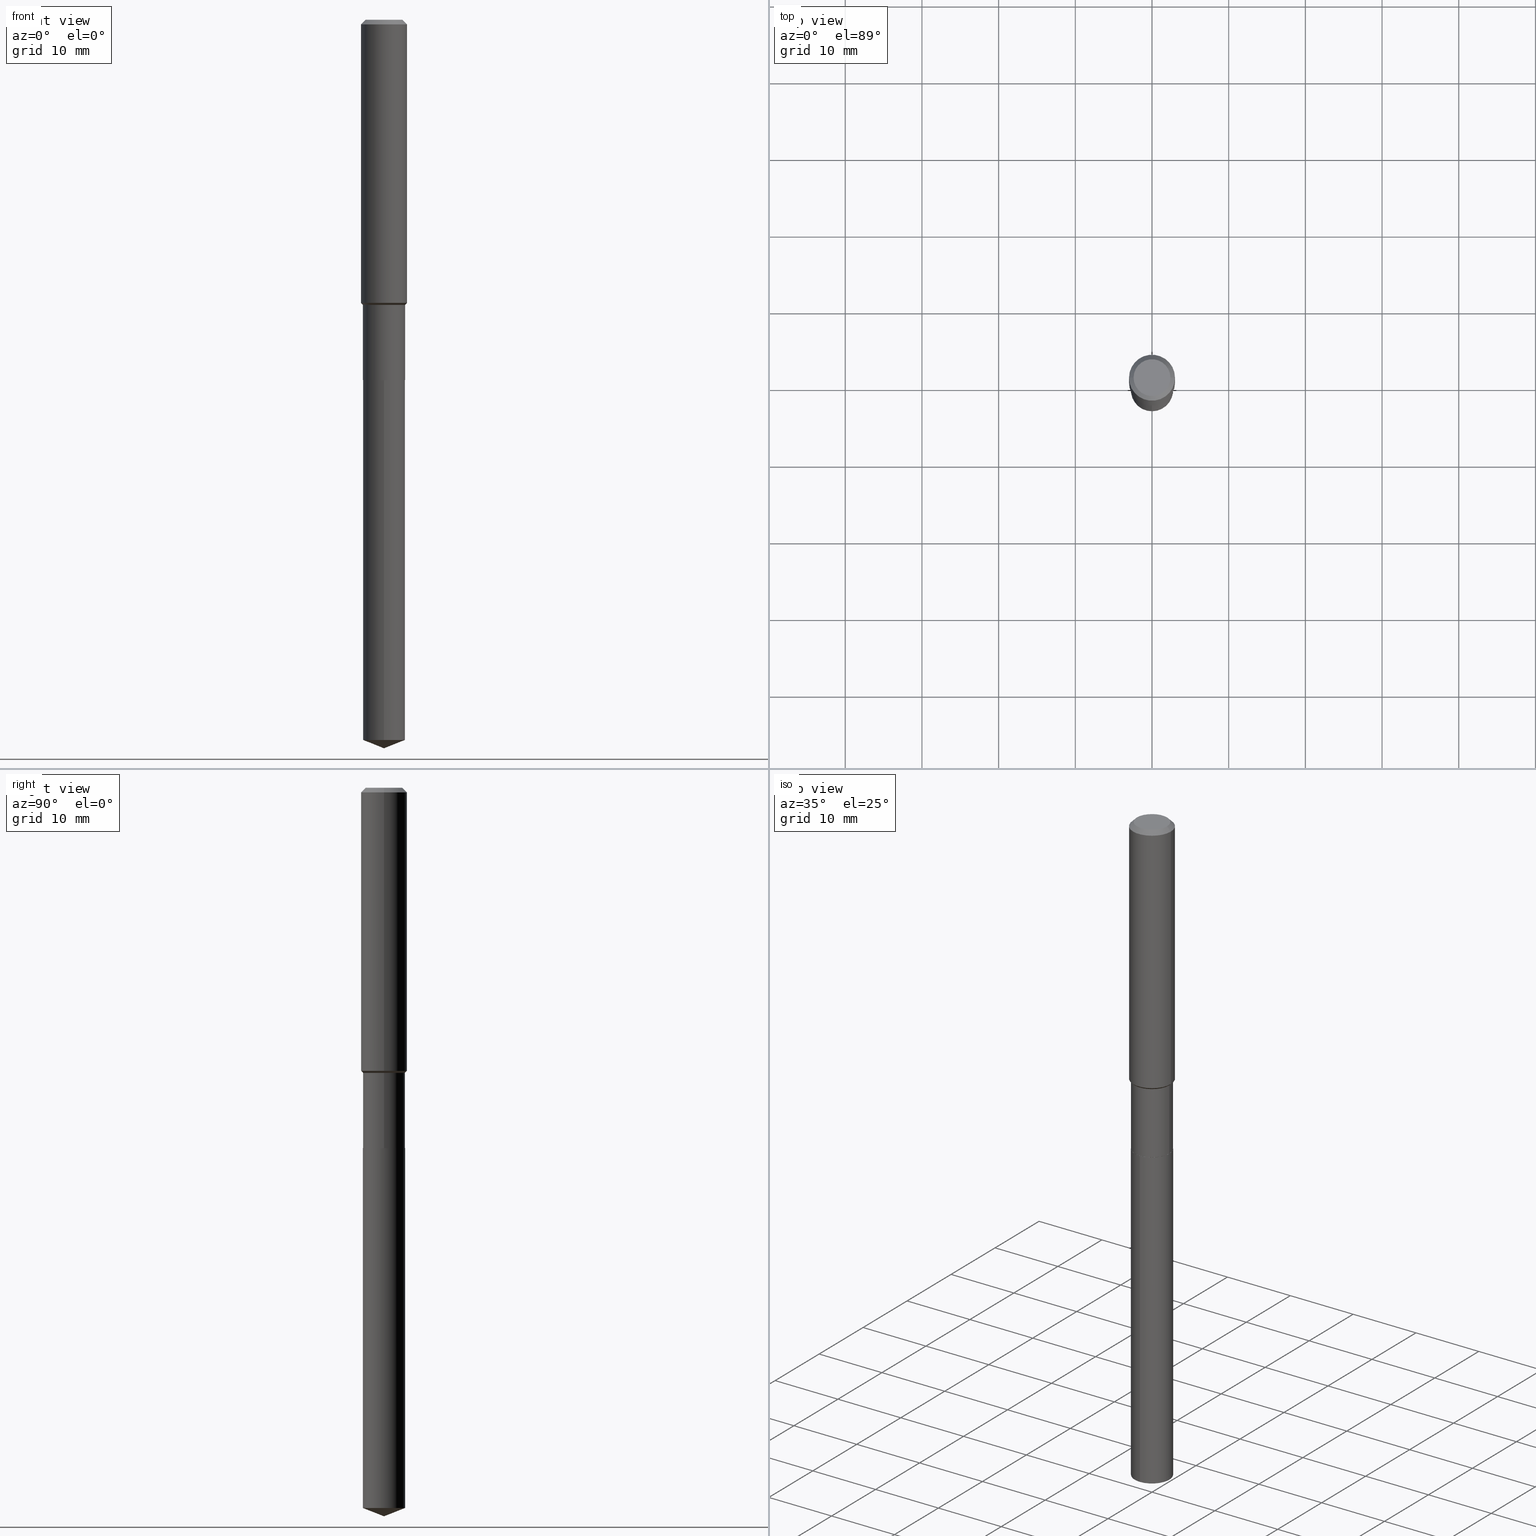
[diagram: canonical four-view strip — front | top / right | iso, engineering-drawing reading convention]
A machine part, canonical four-view strip (front | top / right | iso — engineering-drawing reading convention). The complete STEP part file that produces these views, byte-faithful:
ISO-10303-21;
HEADER;
FILE_DESCRIPTION (( 'STEP AP203' ),
    '1' );
FILE_NAME ('66631.STEP',
    '2024-04-25T02:26:37',
    ( '' ),
    ( '' ),
    'SwSTEP 2.0',
    'SolidWorks 2023',
    '' );
FILE_SCHEMA (( 'CONFIG_CONTROL_DESIGN' ));
ENDSEC;

DATA;
#1 = DATE_TIME_ROLE ( 'classification_date' ) ;
#2 = CARTESIAN_POINT ( 'NONE',  ( 4.525095478964977954E-29, -6.460637069395358365E-15, -1.850400000000000489 ) ) ;
#3 = COORDINATED_UNIVERSAL_TIME_OFFSET ( 5, 0, .BEHIND. ) ;
#4 = FACE_OUTER_BOUND ( 'NONE', #106, .T. ) ;
#5 = LOCAL_TIME ( 22, 26, 37.00000000000000000, #73 ) ;
#6 = CC_DESIGN_APPROVAL ( #266, ( #68 ) ) ;
#7 = DIRECTION ( 'NONE',  ( 2.438088387897960049E-29, -3.491481338843145188E-15, -1.000000000000000000 ) ) ;
#8 = FACE_OUTER_BOUND ( 'NONE', #432, .T. ) ;
#9 = CYLINDRICAL_SURFACE ( 'NONE', #197, 0.1181000000000000799 ) ;
#10 = VECTOR ( 'NONE', #423, 39.37007874015748143 ) ;
#11 = CARTESIAN_POINT ( 'NONE',  ( -0.1180999999999999966, 7.422191030112725094E-16, -0.02362000000000014088 ) ) ;
#12 = EDGE_LOOP ( 'NONE', ( #387, #277, #349, #93 ) ) ;
#13 = EDGE_CURVE ( 'NONE', #336, #287, #255, .T. ) ;
#14 = CARTESIAN_POINT ( 'NONE',  ( 0.09447999999999998066, -7.704367267948738690E-16, -1.928573779296752193E-17 ) ) ;
#15 = EDGE_LOOP ( 'NONE', ( #243, #354, #430 ) ) ;
#16 = CARTESIAN_POINT ( 'NONE',  ( -0.1181000000000000799, 8.391509709326788873E-16, -5.809262341591047988E-30 ) ) ;
#17 = EDGE_CURVE ( 'NONE', #478, #401, #474, .T. ) ;
#18 = VERTEX_POINT ( 'NONE', #178 ) ;
#19 = CARTESIAN_POINT ( 'NONE',  ( 9.042287333339702825E-29, -1.290992787816990651E-14, -3.697559191014683666 ) ) ;
#20 = ADVANCED_BREP_SHAPE_REPRESENTATION ( '66631', ( #282, #447, #475 ), #137 ) ;
#21 = VECTOR ( 'NONE', #225, 39.37007874015748143 ) ;
#22 = AXIS2_PLACEMENT_3D ( 'NONE', #468, #50, #195 ) ;
#23 = CARTESIAN_POINT ( 'NONE',  ( 9.146542891173238393E-29, -1.305883784153045268E-14, -3.740200000000000191 ) ) ;
#24 = CARTESIAN_POINT ( 'NONE',  ( 0.000000000000000000, 0.000000000000000000, 0.000000000000000000 ) ) ;
#25 = VERTEX_POINT ( 'NONE', #252 ) ;
#26 = ADVANCED_FACE ( 'NONE', ( #32 ), #333, .T. ) ;
#27 = LENGTH_MEASURE_WITH_UNIT ( LENGTH_MEASURE( 0.02539999999999999897 ), #212 );
#28 = EDGE_LOOP ( 'NONE', ( #328, #467, #109, #143 ) ) ;
#29 = AXIS2_PLACEMENT_3D ( 'NONE', #462, #118, #313 ) ;
#30 = APPROVAL_PERSON_ORGANIZATION ( #42, #117, #231 ) ;
#31 = DIRECTION ( 'NONE',  ( -2.445480539169630025E-29, 3.491464536541551464E-15, 1.000000000000000000 ) ) ;
#32 = FACE_OUTER_BOUND ( 'NONE', #247, .T. ) ;
#33 = DIRECTION ( 'NONE',  ( 1.000000000000000000, -6.982962677686267499E-15, 4.875432709231658792E-29 ) ) ;
#34 = EDGE_CURVE ( 'NONE', #478, #66, #64, .T. ) ;
#35 = CARTESIAN_POINT ( 'NONE',  ( 9.146586312602250272E-29, -1.305877565957271148E-14, -3.740200000000000191 ) ) ;
#36 = DIRECTION ( 'NONE',  ( -2.445480539169629745E-29, 3.491464536541551464E-15, 1.000000000000000000 ) ) ;
#37 = ORIENTED_EDGE ( 'NONE', *, *, #285, .F. ) ;
#38 = AXIS2_PLACEMENT_3D ( 'NONE', #386, #353, #426 ) ;
#39 = PERSON_AND_ORGANIZATION_ROLE ( 'classification_officer' ) ;
#40 = CARTESIAN_POINT ( 'NONE',  ( 1.249090204566720734E-29, -1.115206308097434208E-14, -1.850400000000000489 ) ) ;
#41 = EDGE_CURVE ( 'NONE', #336, #401, #107, .T. ) ;
#42 = PERSON_AND_ORGANIZATION ( #156, #429 ) ;
#43 = DIRECTION ( 'NONE',  ( 2.445480539169629464E-29, -3.491464536541551464E-15, -1.000000000000000000 ) ) ;
#44 = PERSON_AND_ORGANIZATION ( #156, #429 ) ;
#45 = DIRECTION ( 'NONE',  ( -2.445468806185136597E-29, 3.491481338843145583E-15, 1.000000000000000000 ) ) ;
#46 = VECTOR ( 'NONE', #268, 39.37007874015748143 ) ;
#47 = VECTOR ( 'NONE', #273, 39.37007874015748854 ) ;
#48 = CARTESIAN_POINT ( 'NONE',  ( 4.525095478964977394E-29, -6.460637069395357576E-15, -1.850400000000000267 ) ) ;
#49 = CARTESIAN_POINT ( 'NONE',  ( 4.716267017698007905E-46, -6.733579360998555036E-32, -1.928573779297252010E-17 ) ) ;
#50 = DIRECTION ( 'NONE',  ( 2.445468806185136597E-29, -3.491481338843145583E-15, -1.000000000000000000 ) ) ;
#51 = VERTEX_POINT ( 'NONE', #35 ) ;
#52 = EDGE_CURVE ( 'NONE', #287, #478, #219, .T. ) ;
#53 = CYLINDRICAL_SURFACE ( 'NONE', #38, 0.1082499999999999712 ) ;
#54 = ORIENTED_EDGE ( 'NONE', *, *, #185, .T. ) ;
#55 = DIRECTION ( 'NONE',  ( -2.445480539169629745E-29, 3.491464536541551464E-15, 1.000000000000000000 ) ) ;
#56 = ORIENTED_EDGE ( 'NONE', *, *, #81, .T. ) ;
#57 = CARTESIAN_POINT ( 'NONE',  ( 3.555100276991642059E-29, -5.075740996343221602E-15, -1.453749999999999654 ) ) ;
#58 = LINE ( 'NONE', #425, #303 ) ;
#59 = AXIS2_PLACEMENT_3D ( 'NONE', #441, #402, #174 ) ;
#60 = EDGE_LOOP ( 'NONE', ( #141, #275 ) ) ;
#61 = ORIENTED_EDGE ( 'NONE', *, *, #412, .F. ) ;
#62 = EDGE_CURVE ( 'NONE', #66, #176, #421, .T. ) ;
#63 = CARTESIAN_POINT ( 'NONE',  ( 4.716267017698007905E-46, -6.733579360998555036E-32, -1.928573779297252010E-17 ) ) ;
#64 = LINE ( 'NONE', #213, #67 ) ;
#65 = EDGE_CURVE ( 'NONE', #427, #442, #144, .T. ) ;
#66 = VERTEX_POINT ( 'NONE', #236 ) ;
#67 = VECTOR ( 'NONE', #364, 39.37007874015748143 ) ;
#68 = SECURITY_CLASSIFICATION ( '', '', #375 ) ;
#69 = APPLICATION_PROTOCOL_DEFINITION ( 'international standard', 'config_control_design', 1994, #443 ) ;
#70 = EDGE_LOOP ( 'NONE', ( #260, #452, #61, #130 ) ) ;
#71 =( NAMED_UNIT ( * ) PLANE_ANGLE_UNIT ( ) SI_UNIT ( $, .RADIAN. ) );
#72 = ORIENTED_EDGE ( 'NONE', *, *, #218, .F. ) ;
#73 = COORDINATED_UNIVERSAL_TIME_OFFSET ( 5, 0, .BEHIND. ) ;
#74 = CARTESIAN_POINT ( 'NONE',  ( 3.579188144732565988E-29, -5.110132087530827984E-15, -1.463600000000000012 ) ) ;
#75 = EDGE_CURVE ( 'NONE', #287, #336, #398, .T. ) ;
#76 = AXIS2_PLACEMENT_3D ( 'NONE', #404, #294, #108 ) ;
#77 = PERSON_AND_ORGANIZATION ( #156, #429 ) ;
#78 = DIRECTION ( 'NONE',  ( -6.982962677686265922E-15, -1.000000000000000000, 5.047294214622195629E-15 ) ) ;
#79 = DATE_AND_TIME ( #418, #235 ) ;
#80 = FACE_OUTER_BOUND ( 'NONE', #330, .T. ) ;
#81 = EDGE_CURVE ( 'NONE', #284, #201, #419, .T. ) ;
#82 = CARTESIAN_POINT ( 'NONE',  ( 4.523872744561885153E-29, -6.458891328725936072E-15, -1.849900000000000322 ) ) ;
#83 = AXIS2_PLACEMENT_3D ( 'NONE', #342, #7, #416 ) ;
#84 = CIRCLE ( 'NONE', #199, 0.09447999999999998066 ) ;
#85 = EDGE_CURVE ( 'NONE', #312, #254, #135, .T. ) ;
#86 = DIRECTION ( 'NONE',  ( -2.445480539169629745E-29, 3.491464536541551464E-15, 1.000000000000000000 ) ) ;
#87 = CARTESIAN_POINT ( 'NONE',  ( 7.691625114603990645E-16, 0.1082499999999935458, -1.850400000000000489 ) ) ;
#88 = DIRECTION ( 'NONE',  ( -2.445468806185136597E-29, 3.491481338843145583E-15, 1.000000000000000000 ) ) ;
#89 = ADVANCED_FACE ( 'NONE', ( #80 ), #376, .F. ) ;
#90 = AXIS2_PLACEMENT_3D ( 'NONE', #405, #147, #222 ) ;
#91 = LOCAL_TIME ( 22, 26, 37.00000000000000000, #301 ) ;
#92 = DIRECTION ( 'NONE',  ( -2.445468806185136597E-29, 3.491481338843145583E-15, 1.000000000000000000 ) ) ;
#93 = ORIENTED_EDGE ( 'NONE', *, *, #185, .F. ) ;
#94 = DIRECTION ( 'NONE',  ( -2.445468806185136877E-29, 3.491481338843145188E-15, 1.000000000000000000 ) ) ;
#95 = ORIENTED_EDGE ( 'NONE', *, *, #477, .T. ) ;
#96 = DIRECTION ( 'NONE',  ( -6.982962677686265922E-15, -1.000000000000000000, 5.047294214622195629E-15 ) ) ;
#97 = ORIENTED_EDGE ( 'NONE', *, *, #62, .T. ) ;
#98 = AXIS2_PLACEMENT_3D ( 'NONE', #48, #43, #149 ) ;
#99 = DIRECTION ( 'NONE',  ( -6.982962677686265922E-15, -1.000000000000000000, 2.523647107311097814E-15 ) ) ;
#100 = CIRCLE ( 'NONE', #456, 0.1082499999999999435 ) ;
#101 = EDGE_LOOP ( 'NONE', ( #210, #245, #324, #316 ) ) ;
#102 = LINE ( 'NONE', #331, #216 ) ;
#103 = ORIENTED_EDGE ( 'NONE', *, *, #433, .F. ) ;
#104 = ADVANCED_FACE ( 'NONE', ( #381 ), #340, .F. ) ;
#105 =( NAMED_UNIT ( * ) SI_UNIT ( $, .STERADIAN. ) SOLID_ANGLE_UNIT ( ) );
#106 = EDGE_LOOP ( 'NONE', ( #397, #332, #489, #134 ) ) ;
#107 = LINE ( 'NONE', #258, #348 ) ;
#108 = DIRECTION ( 'NONE',  ( 1.000000000000000000, -6.982962677686263555E-15, 0.000000000000000000 ) ) ;
#109 = ORIENTED_EDGE ( 'NONE', *, *, #17, .F. ) ;
#110 = CALENDAR_DATE ( 2024, 24, 4 ) ;
#111 = DIRECTION ( 'NONE',  ( 1.000000000000000000, -6.982962677686267499E-15, 0.000000000000000000 ) ) ;
#112 = PERSON_AND_ORGANIZATION_ROLE ( 'design_owner' ) ;
#113 = CARTESIAN_POINT ( 'NONE',  ( 3.579188144732565988E-29, -5.110132087530827984E-15, -1.463600000000000012 ) ) ;
#114 = APPROVAL_DATE_TIME ( #261, #117 ) ;
#115 = CARTESIAN_POINT ( 'NONE',  ( 4.525095478964977394E-29, -6.460637069395357576E-15, -1.850400000000000267 ) ) ;
#116 = CARTESIAN_POINT ( 'NONE',  ( 0.1180999999999999966, -9.071566814582237199E-16, -0.02362000000000014088 ) ) ;
#117 = APPROVAL ( #186, 'UNSPECIFIED' ) ;
#118 = DIRECTION ( 'NONE',  ( -2.445468806185136597E-29, 3.491481338843145583E-15, 1.000000000000000000 ) ) ;
#119 = AXIS2_PLACEMENT_3D ( 'NONE', #115, #86, #383 ) ;
#120 = CONICAL_SURFACE ( 'NONE', #257, 99.94676754584159539, 1.195550537616125064 ) ;
#121 = CARTESIAN_POINT ( 'NONE',  ( -8.713219678274335127E-28, 1.244004269715567405E-13, 35.62987874015747991 ) ) ;
#122 = FACE_OUTER_BOUND ( 'NONE', #70, .T. ) ;
#123 = ORIENTED_EDGE ( 'NONE', *, *, #152, .T. ) ;
#124 = CARTESIAN_POINT ( 'NONE',  ( 7.691625114603988673E-16, 0.1082499999999870927, -3.697559191014684554 ) ) ;
#125 = CC_DESIGN_PERSON_AND_ORGANIZATION_ASSIGNMENT ( #411, #263, ( #457 ) ) ;
#126 = EDGE_LOOP ( 'NONE', ( #132, #291, #362, #209 ) ) ;
#127 = AXIS2_PLACEMENT_3D ( 'NONE', #234, #413, #78 ) ;
#128 = AXIS2_PLACEMENT_3D ( 'NONE', #476, #36, #286 ) ;
#129 = DIRECTION ( 'NONE',  ( 6.611014441532080788E-15, 0.9304175679820292366, 0.3665012267242853672 ) ) ;
#130 = ORIENTED_EDGE ( 'NONE', *, *, #34, .F. ) ;
#131 = DIRECTION ( 'NONE',  ( -2.445480539169629745E-29, 3.491464536541551464E-15, 1.000000000000000000 ) ) ;
#132 = ORIENTED_EDGE ( 'NONE', *, *, #85, .T. ) ;
#133 = FACE_OUTER_BOUND ( 'NONE', #298, .T. ) ;
#134 = ORIENTED_EDGE ( 'NONE', *, *, #327, .F. ) ;
#135 = CIRCLE ( 'NONE', #127, 0.1082499999999999990 ) ;
#136 = ADVANCED_FACE ( 'NONE', ( #230 ), #406, .T. ) ;
#137 =( GEOMETRIC_REPRESENTATION_CONTEXT ( 3 ) GLOBAL_UNCERTAINTY_ASSIGNED_CONTEXT ( ( #233 ) ) GLOBAL_UNIT_ASSIGNED_CONTEXT ( ( #409, #71, #105 ) ) REPRESENTATION_CONTEXT ( 'NONE', 'WORKASPACE' ) );
#138 = DIRECTION ( 'NONE',  ( 1.000000000000000000, -6.982962677686267499E-15, 0.000000000000000000 ) ) ;
#139 = EDGE_LOOP ( 'NONE', ( #465, #172, #357, #160 ) ) ;
#140 = CARTESIAN_POINT ( 'NONE',  ( 0.000000000000000000, 0.000000000000000000, 0.000000000000000000 ) ) ;
#141 = ORIENTED_EDGE ( 'NONE', *, *, #75, .F. ) ;
#142 = DIRECTION ( 'NONE',  ( -2.445480539169629745E-29, 3.491464536541551464E-15, 1.000000000000000000 ) ) ;
#143 = ORIENTED_EDGE ( 'NONE', *, *, #52, .F. ) ;
#144 = CIRCLE ( 'NONE', #119, 0.1082499999999999990 ) ;
#145 = AXIS2_PLACEMENT_3D ( 'NONE', #463, #88, #315 ) ;
#146 = CALENDAR_DATE ( 2024, 24, 4 ) ;
#147 = DIRECTION ( 'NONE',  ( -2.445468806185136597E-29, 3.491481338843145583E-15, 1.000000000000000000 ) ) ;
#148 = APPROVAL_STATUS ( 'not_yet_approved' ) ;
#149 = DIRECTION ( 'NONE',  ( 6.982962677686265922E-15, 1.000000000000000000, -3.491464536541551464E-15 ) ) ;
#150 = DATE_TIME_ROLE ( 'creation_date' ) ;
#151 = PLANE ( 'NONE',  #83 ) ;
#152 = EDGE_CURVE ( 'NONE', #250, #284, #317, .T. ) ;
#153 = CARTESIAN_POINT ( 'NONE',  ( 4.525095478964977954E-29, -6.460637069395358365E-15, -1.850400000000000489 ) ) ;
#154 = CARTESIAN_POINT ( 'NONE',  ( 5.776197320209327532E-31, -8.246878922347559293E-17, -0.02362000000000014088 ) ) ;
#155 = DIRECTION ( 'NONE',  ( 1.000000000000000000, -6.982962677686271444E-15, 0.000000000000000000 ) ) ;
#156 = PERSON ( 'UNSPECIFIED', 'UNSPECIFIED', 'UNSPECIFIED', ('UNSPECIFIED'), ('UNSPECIFIED'), ('UNSPECIFIED') ) ;
#157 = AXIS2_PLACEMENT_3D ( 'NONE', #153, #262, #302 ) ;
#158 = VECTOR ( 'NONE', #31, 39.37007874015748143 ) ;
#159 = DIRECTION ( 'NONE',  ( -6.982962677686265922E-15, -1.000000000000000000, 2.523647107311097814E-15 ) ) ;
#160 = ORIENTED_EDGE ( 'NONE', *, *, #65, .F. ) ;
#161 = EDGE_CURVE ( 'NONE', #25, #201, #486, .T. ) ;
#162 = FACE_OUTER_BOUND ( 'NONE', #101, .T. ) ;
#163 = DIRECTION ( 'NONE',  ( -2.445468806185136877E-29, 3.491481338843145188E-15, 1.000000000000000000 ) ) ;
#164 = ADVANCED_FACE ( 'NONE', ( #4 ), #9, .T. ) ;
#165 = AXIS2_PLACEMENT_3D ( 'NONE', #74, #459, #385 ) ;
#166 = LOCAL_TIME ( 22, 26, 37.00000000000000000, #183 ) ;
#167 = DIRECTION ( 'NONE',  ( -2.445480539169629745E-29, 3.491464536541551464E-15, 1.000000000000000000 ) ) ;
#168 = ORIENTED_EDGE ( 'NONE', *, *, #293, .F. ) ;
#169 = ADVANCED_FACE ( 'NONE', ( #269 ), #151, .F. ) ;
#170 = DIRECTION ( 'NONE',  ( -2.445468806185136877E-29, 3.491481338843145188E-15, 1.000000000000000000 ) ) ;
#171 = CYLINDRICAL_SURFACE ( 'NONE', #128, 0.1082499999999999990 ) ;
#172 = ORIENTED_EDGE ( 'NONE', *, *, #218, .T. ) ;
#173 = AXIS2_PLACEMENT_3D ( 'NONE', #2, #306, #300 ) ;
#174 = DIRECTION ( 'NONE',  ( 1.000000000000000000, -6.982962677686271444E-15, 0.000000000000000000 ) ) ;
#175 = ORIENTED_EDGE ( 'NONE', *, *, #460, .F. ) ;
#176 = VERTEX_POINT ( 'NONE', #344 ) ;
#177 = FACE_OUTER_BOUND ( 'NONE', #139, .T. ) ;
#178 = CARTESIAN_POINT ( 'NONE',  ( -0.1181000000000001632, -4.236590025410543405E-15, -1.453749999999999654 ) ) ;
#179 = COORDINATED_UNIVERSAL_TIME_OFFSET ( 5, 0, .BEHIND. ) ;
#180 = EDGE_LOOP ( 'NONE', ( #352, #449, #97, #196 ) ) ;
#181 = AXIS2_PLACEMENT_3D ( 'NONE', #244, #92, #360 ) ;
#182 = CC_DESIGN_PERSON_AND_ORGANIZATION_ASSIGNMENT ( #488, #39, ( #68 ) ) ;
#183 = COORDINATED_UNIVERSAL_TIME_OFFSET ( 5, 0, .BEHIND. ) ;
#184 = FACE_OUTER_BOUND ( 'NONE', #28, .T. ) ;
#185 = EDGE_CURVE ( 'NONE', #401, #478, #358, .T. ) ;
#186 = APPROVAL_STATUS ( 'not_yet_approved' ) ;
#187 = CARTESIAN_POINT ( 'NONE',  ( 0.1180999999999999966, -8.926936027602933910E-16, -0.02362000000000014088 ) ) ;
#188 = PRODUCT_DEFINITION_SHAPE ( 'NONE', 'NONE',  #205 ) ;
#189 = SHAPE_DEFINITION_REPRESENTATION ( #188, #20 ) ;
#190 = DIRECTION ( 'NONE',  ( -2.445468806185136597E-29, 3.491481338843145583E-15, 1.000000000000000000 ) ) ;
#191 = VECTOR ( 'NONE', #129, 39.37007874015748143 ) ;
#192 = CARTESIAN_POINT ( 'NONE',  ( 0.000000000000000000, 0.000000000000000000, 0.000000000000000000 ) ) ;
#193 = DIRECTION ( 'NONE',  ( 1.000000000000000000, -6.982962677686266711E-15, 0.000000000000000000 ) ) ;
#194 = EDGE_CURVE ( 'NONE', #469, #66, #100, .T. ) ;
#195 = DIRECTION ( 'NONE',  ( -1.000000000000000000, 6.982962677686266711E-15, 0.000000000000000000 ) ) ;
#196 = ORIENTED_EDGE ( 'NONE', *, *, #394, .F. ) ;
#197 = AXIS2_PLACEMENT_3D ( 'NONE', #192, #190, #304 ) ;
#198 = CC_DESIGN_PERSON_AND_ORGANIZATION_ASSIGNMENT ( #44, #297, ( #457 ) ) ;
#199 = AXIS2_PLACEMENT_3D ( 'NONE', #63, #326, #33 ) ;
#200 = DIRECTION ( 'NONE',  ( 1.000000000000000000, -6.982962677686271444E-15, 0.000000000000000000 ) ) ;
#201 = VERTEX_POINT ( 'NONE', #116 ) ;
#202 = ADVANCED_FACE ( 'NONE', ( #184 ), #307, .T. ) ;
#203 = CARTESIAN_POINT ( 'NONE',  ( -0.1077499999999999986, -5.692378044439739125E-15, -1.850400000000000489 ) ) ;
#204 = DIRECTION ( 'NONE',  ( 1.000000000000000000, -6.982962677686270655E-15, 0.000000000000000000 ) ) ;
#205 = PRODUCT_DEFINITION ( 'UNKNOWN', '', #457, #228 ) ;
#206 = AXIS2_PLACEMENT_3D ( 'NONE', #369, #292, #444 ) ;
#207 = CIRCLE ( 'NONE', #335, 0.1082499999999999990 ) ;
#208 = LINE ( 'NONE', #16, #226 ) ;
#209 = ORIENTED_EDGE ( 'NONE', *, *, #481, .F. ) ;
#210 = ORIENTED_EDGE ( 'NONE', *, *, #81, .F. ) ;
#211 = ADVANCED_FACE ( 'NONE', ( #8 ), #305, .T. ) ;
#212 =( LENGTH_UNIT ( ) NAMED_UNIT ( * ) SI_UNIT ( $, .METRE. ) );
#213 = CARTESIAN_POINT ( 'NONE',  ( 0.1082499999999999712, -7.559057098595381624E-16, 5.278461359799098590E-30 ) ) ;
#214 = CIRCLE ( 'NONE', #308, 0.1082499999999999990 ) ;
#215 = FACE_OUTER_BOUND ( 'NONE', #403, .T. ) ;
#216 = VECTOR ( 'NONE', #363, 39.37007874015748143 ) ;
#217 = DIRECTION ( 'NONE',  ( -2.445468806185136597E-29, 3.491481338843145583E-15, 1.000000000000000000 ) ) ;
#218 = EDGE_CURVE ( 'NONE', #254, #312, #214, .T. ) ;
#219 = LINE ( 'NONE', #461, #21 ) ;
#220 = MECHANICAL_CONTEXT ( 'NONE', #443, 'mechanical' ) ;
#221 = APPROVAL ( #148, 'UNSPECIFIED' ) ;
#222 = DIRECTION ( 'NONE',  ( 1.000000000000000000, -6.982962677686263555E-15, 0.000000000000000000 ) ) ;
#223 = APPROVAL_DATE_TIME ( #453, #221 ) ;
#224 = CLOSED_SHELL ( 'NONE', ( #202, #26, #164, #439, #345, #450, #136, #211, #379, #169, #104, #490 ) ) ;
#225 = DIRECTION ( 'NONE',  ( 0.7071067811864267805, -2.468850131080992517E-15, 0.7071067811866682540 ) ) ;
#226 = VECTOR ( 'NONE', #163, 39.37007874015748143 ) ;
#227 = EDGE_CURVE ( 'NONE', #176, #18, #295, .T. ) ;
#228 = DESIGN_CONTEXT ( 'detailed design', #350, 'design' ) ;
#229 = APPROVAL_STATUS ( 'not_yet_approved' ) ;
#230 = FACE_OUTER_BOUND ( 'NONE', #180, .T. ) ;
#231 = APPROVAL_ROLE ( '' ) ;
#232 = DIRECTION ( 'NONE',  ( -2.438088387897960049E-29, 3.491481338843145188E-15, 1.000000000000000000 ) ) ;
#233 = UNCERTAINTY_MEASURE_WITH_UNIT (LENGTH_MEASURE( 1.000000000000000082E-05 ), #409, 'distance_accuracy_value', 'NONE');
#234 = CARTESIAN_POINT ( 'NONE',  ( 9.042287333339702825E-29, -1.290992787816990651E-14, -3.697559191014683666 ) ) ;
#235 = LOCAL_TIME ( 22, 26, 37.00000000000000000, #3 ) ;
#236 = CARTESIAN_POINT ( 'NONE',  ( 0.1082499999999999435, -5.866037797390366639E-15, -1.463600000000000012 ) ) ;
#237 = LINE ( 'NONE', #11, #271 ) ;
#238 = DIRECTION ( 'NONE',  ( -2.445468806185136597E-29, 3.491481338843145583E-15, 1.000000000000000000 ) ) ;
#239 = ORIENTED_EDGE ( 'NONE', *, *, #240, .T. ) ;
#240 = EDGE_CURVE ( 'NONE', #442, #427, #207, .T. ) ;
#241 = CIRCLE ( 'NONE', #414, 0.1181000000000001632 ) ;
#242 = CARTESIAN_POINT ( 'NONE',  ( 0.1077499999999999986, -7.213051297916053224E-15, -1.850400000000000489 ) ) ;
#243 = ORIENTED_EDGE ( 'NONE', *, *, #420, .F. ) ;
#244 = CARTESIAN_POINT ( 'NONE',  ( 3.555100276991642059E-29, -5.075740996343221602E-15, -1.453749999999999654 ) ) ;
#245 = ORIENTED_EDGE ( 'NONE', *, *, #152, .F. ) ;
#246 = LINE ( 'NONE', #395, #343 ) ;
#247 = EDGE_LOOP ( 'NONE', ( #175, #56, #290, #103 ) ) ;
#248 = AXIS2_PLACEMENT_3D ( 'NONE', #40, #232, #264 ) ;
#249 = CYLINDRICAL_SURFACE ( 'NONE', #318, 0.1082499999999999712 ) ;
#250 = VERTEX_POINT ( 'NONE', #274 ) ;
#251 = DIRECTION ( 'NONE',  ( -2.445468806185136597E-29, 3.491481338843145583E-15, 1.000000000000000000 ) ) ;
#252 = CARTESIAN_POINT ( 'NONE',  ( -0.1180999999999999966, -1.739953921850669150E-15, -0.02362000000000014088 ) ) ;
#253 = CARTESIAN_POINT ( 'NONE',  ( 0.1082499999999999990, -7.214797038585475517E-15, -1.849900000000000322 ) ) ;
#254 = VERTEX_POINT ( 'NONE', #124 ) ;
#255 = CIRCLE ( 'NONE', #90, 0.1077499999999999986 ) ;
#256 = FACE_OUTER_BOUND ( 'NONE', #126, .T. ) ;
#257 = AXIS2_PLACEMENT_3D ( 'NONE', #121, #55, #311 ) ;
#258 = CARTESIAN_POINT ( 'NONE',  ( -0.1077499999999999986, -5.695027271613851115E-15, -1.850400000000000489 ) ) ;
#259 = EDGE_CURVE ( 'NONE', #254, #427, #246, .T. ) ;
#260 = ORIENTED_EDGE ( 'NONE', *, *, #17, .T. ) ;
#261 = DATE_AND_TIME ( #341, #91 ) ;
#262 = DIRECTION ( 'NONE',  ( -2.445468806185136597E-29, 3.491481338843145583E-15, 1.000000000000000000 ) ) ;
#263 = PERSON_AND_ORGANIZATION_ROLE ( 'design_supplier' ) ;
#264 = DIRECTION ( 'NONE',  ( 1.000000000000000000, -6.982962677686265922E-15, 4.876176775795935793E-29 ) ) ;
#265 = CONICAL_SURFACE ( 'NONE', #59, 0.1082499999999999435, 0.7853981633974509435 ) ;
#266 = APPROVAL ( #229, 'UNSPECIFIED' ) ;
#267 = PERSON_AND_ORGANIZATION_ROLE ( 'creator' ) ;
#268 = DIRECTION ( 'NONE',  ( 0.7071067811865493491, -2.468850131082276388E-15, 0.7071067811865456854 ) ) ;
#269 = FACE_OUTER_BOUND ( 'NONE', #372, .T. ) ;
#270 = DIRECTION ( 'NONE',  ( -2.445468806185136597E-29, 3.491481338843145583E-15, 1.000000000000000000 ) ) ;
#271 = VECTOR ( 'NONE', #448, 39.37007874015748143 ) ;
#272 = CC_DESIGN_DATE_AND_TIME_ASSIGNMENT ( #451, #1, ( #68 ) ) ;
#273 = DIRECTION ( 'NONE',  ( -6.497071151882134036E-15, -0.9304175679820266831, 0.3665012267242919175 ) ) ;
#274 = CARTESIAN_POINT ( 'NONE',  ( -0.09447999999999998066, 7.009847083995354710E-16, -1.928573779297727792E-17 ) ) ;
#275 = ORIENTED_EDGE ( 'NONE', *, *, #13, .F. ) ;
#276 = DIRECTION ( 'NONE',  ( -2.445480539169629745E-29, 3.491464536541551464E-15, 1.000000000000000000 ) ) ;
#277 = ORIENTED_EDGE ( 'NONE', *, *, #13, .T. ) ;
#278 = CC_DESIGN_DATE_AND_TIME_ASSIGNMENT ( #337, #150, ( #205 ) ) ;
#279 = CC_DESIGN_APPROVAL ( #221, ( #205 ) ) ;
#280 = LINE ( 'NONE', #392, #359 ) ;
#281 = ORIENTED_EDGE ( 'NONE', *, *, #394, .T. ) ;
#282 = MANIFOLD_SOLID_BREP ( 'Body-Move/Copy2[1]', #365 ) ;
#283 = CARTESIAN_POINT ( 'NONE',  ( 9.146586693356927948E-29, -1.305877565957271148E-14, -3.740200000000000191 ) ) ;
#284 = VERTEX_POINT ( 'NONE', #14 ) ;
#285 = EDGE_CURVE ( 'NONE', #51, #254, #396, .T. ) ;
#286 = DIRECTION ( 'NONE',  ( -6.982962677686265922E-15, -1.000000000000000000, 2.523647107311097814E-15 ) ) ;
#287 = VERTEX_POINT ( 'NONE', #242 ) ;
#288 = CONICAL_SURFACE ( 'NONE', #76, 0.1077499999999999986, 0.7853981633972775267 ) ;
#289 = PERSON_AND_ORGANIZATION ( #156, #429 ) ;
#290 = ORIENTED_EDGE ( 'NONE', *, *, #382, .T. ) ;
#291 = ORIENTED_EDGE ( 'NONE', *, *, #259, .T. ) ;
#292 = DIRECTION ( 'NONE',  ( 2.445468806185136597E-29, -3.491481338843145583E-15, -1.000000000000000000 ) ) ;
#293 = EDGE_CURVE ( 'NONE', #401, #469, #280, .T. ) ;
#294 = DIRECTION ( 'NONE',  ( -2.445468806185136597E-29, 3.491481338843145583E-15, 1.000000000000000000 ) ) ;
#295 = CIRCLE ( 'NONE', #181, 0.1181000000000001632 ) ;
#296 = ORIENTED_EDGE ( 'NONE', *, *, #420, .T. ) ;
#297 = PERSON_AND_ORGANIZATION_ROLE ( 'creator' ) ;
#298 = EDGE_LOOP ( 'NONE', ( #483, #95, #320, #371 ) ) ;
#299 = APPROVAL_ROLE ( '' ) ;
#300 = DIRECTION ( 'NONE',  ( 1.000000000000000000, -6.982962677686263555E-15, 0.000000000000000000 ) ) ;
#301 = COORDINATED_UNIVERSAL_TIME_OFFSET ( 5, 0, .BEHIND. ) ;
#302 = DIRECTION ( 'NONE',  ( 1.000000000000000000, -6.982962677686263555E-15, 0.000000000000000000 ) ) ;
#303 = VECTOR ( 'NONE', #94, 39.37007874015748143 ) ;
#304 = DIRECTION ( 'NONE',  ( 1.000000000000000000, -6.982962677686266711E-15, 4.876176775795936353E-29 ) ) ;
#305 = CYLINDRICAL_SURFACE ( 'NONE', #29, 0.1181000000000000799 ) ;
#306 = DIRECTION ( 'NONE',  ( -2.445468806185136597E-29, 3.491481338843145583E-15, 1.000000000000000000 ) ) ;
#307 = CONICAL_SURFACE ( 'NONE', #157, 0.1077499999999999986, 0.7853981633972775267 ) ;
#308 = AXIS2_PLACEMENT_3D ( 'NONE', #19, #167, #96 ) ;
#309 = AXIS2_PLACEMENT_3D ( 'NONE', #351, #131, #466 ) ;
#310 = ADVANCED_FACE ( 'NONE', ( #431 ), #120, .T. ) ;
#311 = DIRECTION ( 'NONE',  ( -6.982962677686266711E-15, -1.000000000000000000, 3.498627837349947424E-15 ) ) ;
#312 = VERTEX_POINT ( 'NONE', #464 ) ;
#313 = DIRECTION ( 'NONE',  ( 1.000000000000000000, -6.982962677686266711E-15, 4.876176775795936353E-29 ) ) ;
#314 = ORIENTED_EDGE ( 'NONE', *, *, #34, .T. ) ;
#315 = DIRECTION ( 'NONE',  ( 1.000000000000000000, -6.982962677686266711E-15, 0.000000000000000000 ) ) ;
#316 = ORIENTED_EDGE ( 'NONE', *, *, #161, .T. ) ;
#317 = CIRCLE ( 'NONE', #445, 0.09447999999999998066 ) ;
#318 = AXIS2_PLACEMENT_3D ( 'NONE', #140, #251, #370 ) ;
#319 = CARTESIAN_POINT ( 'NONE',  ( -0.1082499999999999851, -5.015349196668073880E-15, -1.849900000000000322 ) ) ;
#320 = ORIENTED_EDGE ( 'NONE', *, *, #227, .F. ) ;
#321 = CARTESIAN_POINT ( 'NONE',  ( -0.1082499999999999435, -5.015349196668073880E-15, -1.463600000000000012 ) ) ;
#322 = EDGE_LOOP ( 'NONE', ( #37, #296, #72 ) ) ;
#323 = DIRECTION ( 'NONE',  ( 1.000000000000000000, 0.000000000000000000, 0.000000000000000000 ) ) ;
#324 = ORIENTED_EDGE ( 'NONE', *, *, #433, .T. ) ;
#325 = APPROVAL_PERSON_ORGANIZATION ( #339, #221, #299 ) ;
#326 = DIRECTION ( 'NONE',  ( -2.445468806185136597E-29, 3.491481338843145583E-15, 1.000000000000000000 ) ) ;
#327 = EDGE_CURVE ( 'NONE', #176, #201, #58, .T. ) ;
#328 = ORIENTED_EDGE ( 'NONE', *, *, #75, .T. ) ;
#329 = DIRECTION ( 'NONE',  ( 0.000000000000000000, 0.000000000000000000, 1.000000000000000000 ) ) ;
#330 = EDGE_LOOP ( 'NONE', ( #239, #391 ) ) ;
#331 = CARTESIAN_POINT ( 'NONE',  ( -0.1082499999999999435, -4.340969576070519835E-15, -1.463600000000000012 ) ) ;
#332 = ORIENTED_EDGE ( 'NONE', *, *, #356, .T. ) ;
#333 = CONICAL_SURFACE ( 'NONE', #206, 0.1180999999999999966, 0.7853981633974460586 ) ;
#334 = APPLICATION_PROTOCOL_DEFINITION ( 'international standard', 'config_control_design', 1994, #350 ) ;
#335 = AXIS2_PLACEMENT_3D ( 'NONE', #388, #276, #159 ) ;
#336 = VERTEX_POINT ( 'NONE', #203 ) ;
#337 = DATE_AND_TIME ( #110, #390 ) ;
#338 = DIRECTION ( 'NONE',  ( -2.445468806185136597E-29, 3.491481338843145583E-15, 1.000000000000000000 ) ) ;
#339 = PERSON_AND_ORGANIZATION ( #156, #429 ) ;
#340 = PLANE ( 'NONE',  #248 ) ;
#341 = CALENDAR_DATE ( 2024, 24, 4 ) ;
#342 = CARTESIAN_POINT ( 'NONE',  ( 2.358133508849003952E-46, -3.366789680499277518E-32, -9.642868896486260050E-18 ) ) ;
#343 = VECTOR ( 'NONE', #428, 39.37007874015748143 ) ;
#344 = CARTESIAN_POINT ( 'NONE',  ( 0.1181000000000001632, -5.900428888577971443E-15, -1.453749999999999654 ) ) ;
#345 = ADVANCED_FACE ( 'NONE', ( #122 ), #53, .T. ) ;
#346 = DIRECTION ( 'NONE',  ( -2.445468806185136597E-29, 3.491481338843145583E-15, 1.000000000000000000 ) ) ;
#347 = CARTESIAN_POINT ( 'NONE',  ( 3.579188144732565988E-29, -5.110132087530827984E-15, -1.463600000000000012 ) ) ;
#348 = VECTOR ( 'NONE', #408, 39.37007874015748143 ) ;
#349 = ORIENTED_EDGE ( 'NONE', *, *, #52, .T. ) ;
#350 = APPLICATION_CONTEXT ( 'configuration controlled 3d designs of mechanical parts and assemblies' ) ;
#351 = CARTESIAN_POINT ( 'NONE',  ( -8.713219678274335127E-28, 1.244004269715567405E-13, 35.62987874015747991 ) ) ;
#352 = ORIENTED_EDGE ( 'NONE', *, *, #477, .F. ) ;
#353 = DIRECTION ( 'NONE',  ( -2.445468806185136597E-29, 3.491481338843145583E-15, 1.000000000000000000 ) ) ;
#354 = ORIENTED_EDGE ( 'NONE', *, *, #285, .T. ) ;
#355 = DIRECTION ( 'NONE',  ( -2.445468806185136597E-29, 3.491481338843145583E-15, 1.000000000000000000 ) ) ;
#356 = EDGE_CURVE ( 'NONE', #18, #25, #208, .T. ) ;
#357 = ORIENTED_EDGE ( 'NONE', *, *, #481, .T. ) ;
#358 = CIRCLE ( 'NONE', #422, 0.1082499999999999990 ) ;
#359 = VECTOR ( 'NONE', #170, 39.37007874015748143 ) ;
#360 = DIRECTION ( 'NONE',  ( 1.000000000000000000, -6.982962677686270655E-15, 0.000000000000000000 ) ) ;
#361 = CC_DESIGN_PERSON_AND_ORGANIZATION_ASSIGNMENT ( #458, #267, ( #205 ) ) ;
#362 = ORIENTED_EDGE ( 'NONE', *, *, #240, .F. ) ;
#363 = DIRECTION ( 'NONE',  ( -0.7071067811865493491, 7.493145998870360471E-15, 0.7071067811865456854 ) ) ;
#364 = DIRECTION ( 'NONE',  ( -2.445468806185136877E-29, 3.491481338843145188E-15, 1.000000000000000000 ) ) ;
#365 = CLOSED_SHELL ( 'NONE', ( #455, #417, #310, #470, #89 ) ) ;
#366 = CONICAL_SURFACE ( 'NONE', #309, 99.94676754584159539, 1.195550537616125064 ) ;
#367 = CC_DESIGN_PERSON_AND_ORGANIZATION_ASSIGNMENT ( #289, #112, ( #400 ) ) ;
#368 = LINE ( 'NONE', #482, #158 ) ;
#369 = CARTESIAN_POINT ( 'NONE',  ( 5.776197320209327532E-31, -8.246878922347559293E-17, -0.02362000000000014088 ) ) ;
#370 = DIRECTION ( 'NONE',  ( 1.000000000000000000, -6.982962677686266711E-15, 4.876176775795935232E-29 ) ) ;
#371 = ORIENTED_EDGE ( 'NONE', *, *, #62, .F. ) ;
#372 = EDGE_LOOP ( 'NONE', ( #123, #440 ) ) ;
#373 = AXIS2_PLACEMENT_3D ( 'NONE', #473, #217, #138 ) ;
#374 = CONICAL_SURFACE ( 'NONE', #22, 0.1180999999999999966, 0.7853981633974460586 ) ;
#375 = SECURITY_CLASSIFICATION_LEVEL ( 'unclassified' ) ;
#376 = PLANE ( 'NONE',  #98 ) ;
#377 = APPROVAL_ROLE ( '' ) ;
#378 = DIRECTION ( 'NONE',  ( 1.000000000000000000, -6.982962677686267499E-15, 4.875432709231658792E-29 ) ) ;
#379 = ADVANCED_FACE ( 'NONE', ( #162 ), #374, .T. ) ;
#380 = APPROVAL_DATE_TIME ( #79, #266 ) ;
#381 = FACE_OUTER_BOUND ( 'NONE', #60, .T. ) ;
#382 = EDGE_CURVE ( 'NONE', #201, #25, #424, .T. ) ;
#383 = DIRECTION ( 'NONE',  ( -6.982962677686265922E-15, -1.000000000000000000, 2.523647107311097814E-15 ) ) ;
#384 = CC_DESIGN_APPROVAL ( #117, ( #457 ) ) ;
#385 = DIRECTION ( 'NONE',  ( 1.000000000000000000, -6.982962677686271444E-15, 0.000000000000000000 ) ) ;
#386 = CARTESIAN_POINT ( 'NONE',  ( 0.000000000000000000, 0.000000000000000000, 0.000000000000000000 ) ) ;
#387 = ORIENTED_EDGE ( 'NONE', *, *, #41, .F. ) ;
#388 = CARTESIAN_POINT ( 'NONE',  ( 4.525095478964977394E-29, -6.460637069395357576E-15, -1.850400000000000267 ) ) ;
#389 = AXIS2_PLACEMENT_3D ( 'NONE', #154, #45, #193 ) ;
#390 = LOCAL_TIME ( 22, 26, 37.00000000000000000, #179 ) ;
#391 = ORIENTED_EDGE ( 'NONE', *, *, #65, .T. ) ;
#392 = CARTESIAN_POINT ( 'NONE',  ( -0.1082499999999999712, 7.691625114603082469E-16, -5.324747235200933206E-30 ) ) ;
#393 = ORIENTED_EDGE ( 'NONE', *, *, #194, .F. ) ;
#394 = EDGE_CURVE ( 'NONE', #18, #176, #241, .T. ) ;
#395 = CARTESIAN_POINT ( 'NONE',  ( 7.691625114603536064E-16, 0.1082499999999935458, -1.850400000000000489 ) ) ;
#396 = LINE ( 'NONE', #283, #191 ) ;
#397 = ORIENTED_EDGE ( 'NONE', *, *, #227, .T. ) ;
#398 = CIRCLE ( 'NONE', #173, 0.1077499999999999986 ) ;
#399 = CC_DESIGN_SECURITY_CLASSIFICATION ( #68, ( #457 ) ) ;
#400 = PRODUCT ( '66631', '66631', '', ( #220 ) ) ;
#401 = VERTEX_POINT ( 'NONE', #319 ) ;
#402 = DIRECTION ( 'NONE',  ( -2.445468806185136597E-29, 3.491481338843145583E-15, 1.000000000000000000 ) ) ;
#403 = EDGE_LOOP ( 'NONE', ( #168, #54, #314, #393 ) ) ;
#404 = CARTESIAN_POINT ( 'NONE',  ( 4.525095478964977954E-29, -6.460637069395358365E-15, -1.850400000000000489 ) ) ;
#405 = CARTESIAN_POINT ( 'NONE',  ( 4.525095478964977954E-29, -6.460637069395358365E-15, -1.850400000000000489 ) ) ;
#406 = CONICAL_SURFACE ( 'NONE', #165, 0.1082499999999999435, 0.7853981633974509435 ) ;
#407 = AXIS2_PLACEMENT_3D ( 'NONE', #438, #142, #99 ) ;
#408 = DIRECTION ( 'NONE',  ( -0.7071067811864267805, 7.493145998869918709E-15, 0.7071067811866682540 ) ) ;
#409 =( CONVERSION_BASED_UNIT ( 'INCH', #27 ) LENGTH_UNIT ( ) NAMED_UNIT ( #484 ) );
#410 = ORIENTED_EDGE ( 'NONE', *, *, #327, .T. ) ;
#411 = PERSON_AND_ORGANIZATION ( #156, #429 ) ;
#412 = EDGE_CURVE ( 'NONE', #66, #469, #487, .T. ) ;
#413 = DIRECTION ( 'NONE',  ( -2.445480539169629745E-29, 3.491464536541551464E-15, 1.000000000000000000 ) ) ;
#414 = AXIS2_PLACEMENT_3D ( 'NONE', #57, #238, #204 ) ;
#415 = CALENDAR_DATE ( 2024, 24, 4 ) ;
#416 = DIRECTION ( 'NONE',  ( -1.000000000000000000, 6.982962677686265922E-15, -4.876176775795935793E-29 ) ) ;
#417 = ADVANCED_FACE ( 'NONE', ( #471 ), #366, .T. ) ;
#418 = CALENDAR_DATE ( 2024, 24, 4 ) ;
#419 = LINE ( 'NONE', #187, #10 ) ;
#420 = EDGE_CURVE ( 'NONE', #51, #312, #434, .T. ) ;
#421 = LINE ( 'NONE', #454, #46 ) ;
#422 = AXIS2_PLACEMENT_3D ( 'NONE', #82, #346, #111 ) ;
#423 = DIRECTION ( 'NONE',  ( 0.7071067811865459074, -7.319954787623249734E-15, -0.7071067811865491270 ) ) ;
#424 = CIRCLE ( 'NONE', #145, 0.1180999999999999966 ) ;
#425 = CARTESIAN_POINT ( 'NONE',  ( 0.1181000000000000799, -8.246878922347486570E-16, 5.758764772215004644E-30 ) ) ;
#426 = DIRECTION ( 'NONE',  ( 1.000000000000000000, -6.982962677686266711E-15, 4.876176775795935232E-29 ) ) ;
#427 = VERTEX_POINT ( 'NONE', #87 ) ;
#428 = DIRECTION ( 'NONE',  ( -2.445480539169630025E-29, 3.491464536541551464E-15, 1.000000000000000000 ) ) ;
#429 = ORGANIZATION ( 'UNSPECIFIED', 'UNSPECIFIED', '' ) ;
#430 = ORIENTED_EDGE ( 'NONE', *, *, #85, .F. ) ;
#431 = FACE_OUTER_BOUND ( 'NONE', #322, .T. ) ;
#432 = EDGE_LOOP ( 'NONE', ( #480, #281, #410, #435 ) ) ;
#433 = EDGE_CURVE ( 'NONE', #250, #25, #237, .T. ) ;
#434 = LINE ( 'NONE', #23, #47 ) ;
#435 = ORIENTED_EDGE ( 'NONE', *, *, #161, .F. ) ;
#436 = CYLINDRICAL_SURFACE ( 'NONE', #407, 0.1082499999999999990 ) ;
#437 = AXIS2_PLACEMENT_3D ( 'NONE', #347, #355, #200 ) ;
#438 = CARTESIAN_POINT ( 'NONE',  ( 4.525095478964977394E-29, -6.460637069395357576E-15, -1.850400000000000267 ) ) ;
#439 = ADVANCED_FACE ( 'NONE', ( #133 ), #265, .T. ) ;
#440 = ORIENTED_EDGE ( 'NONE', *, *, #460, .T. ) ;
#441 = CARTESIAN_POINT ( 'NONE',  ( 3.579188144732565988E-29, -5.110132087530827984E-15, -1.463600000000000012 ) ) ;
#442 = VERTEX_POINT ( 'NONE', #472 ) ;
#443 = APPLICATION_CONTEXT ( 'configuration controlled 3d designs of mechanical parts and assemblies' ) ;
#444 = DIRECTION ( 'NONE',  ( -1.000000000000000000, 6.982962677686266711E-15, 0.000000000000000000 ) ) ;
#445 = AXIS2_PLACEMENT_3D ( 'NONE', #49, #270, #378 ) ;
#446 = APPROVAL_PERSON_ORGANIZATION ( #77, #266, #377 ) ;
#447 = MANIFOLD_SOLID_BREP ( 'Body-Move/Copy2[2]', #224 ) ;
#448 = DIRECTION ( 'NONE',  ( -0.7071067811865459074, 2.468850131082240100E-15, -0.7071067811865491270 ) ) ;
#449 = ORIENTED_EDGE ( 'NONE', *, *, #194, .T. ) ;
#450 = ADVANCED_FACE ( 'NONE', ( #215 ), #249, .T. ) ;
#451 = DATE_AND_TIME ( #415, #166 ) ;
#452 = ORIENTED_EDGE ( 'NONE', *, *, #293, .T. ) ;
#453 = DATE_AND_TIME ( #146, #5 ) ;
#454 = CARTESIAN_POINT ( 'NONE',  ( 0.1082499999999999435, -5.866037797390366639E-15, -1.463600000000000012 ) ) ;
#455 = ADVANCED_FACE ( 'NONE', ( #256 ), #171, .T. ) ;
#456 = AXIS2_PLACEMENT_3D ( 'NONE', #113, #338, #155 ) ;
#457 = PRODUCT_DEFINITION_FORMATION_WITH_SPECIFIED_SOURCE ( 'ANY', '', #400, .NOT_KNOWN. ) ;
#458 = PERSON_AND_ORGANIZATION ( #156, #429 ) ;
#459 = DIRECTION ( 'NONE',  ( -2.445468806185136597E-29, 3.491481338843145583E-15, 1.000000000000000000 ) ) ;
#460 = EDGE_CURVE ( 'NONE', #284, #250, #84, .T. ) ;
#461 = CARTESIAN_POINT ( 'NONE',  ( 0.1077499999999999986, -7.213051297916053224E-15, -1.850400000000000489 ) ) ;
#462 = CARTESIAN_POINT ( 'NONE',  ( 0.000000000000000000, 0.000000000000000000, 0.000000000000000000 ) ) ;
#463 = CARTESIAN_POINT ( 'NONE',  ( 5.776197320209327532E-31, -8.246878922347559293E-17, -0.02362000000000014088 ) ) ;
#464 = CARTESIAN_POINT ( 'NONE',  ( -7.559057098594478378E-16, -0.1082500000000129053, -3.697559191014683222 ) ) ;
#465 = ORIENTED_EDGE ( 'NONE', *, *, #259, .F. ) ;
#466 = DIRECTION ( 'NONE',  ( -6.982962677686266711E-15, -1.000000000000000000, 3.498627837349947424E-15 ) ) ;
#467 = ORIENTED_EDGE ( 'NONE', *, *, #41, .T. ) ;
#468 = CARTESIAN_POINT ( 'NONE',  ( 5.776197320209327532E-31, -8.246878922347559293E-17, -0.02362000000000014088 ) ) ;
#469 = VERTEX_POINT ( 'NONE', #321 ) ;
#470 = ADVANCED_FACE ( 'NONE', ( #177 ), #436, .T. ) ;
#471 = FACE_OUTER_BOUND ( 'NONE', #15, .T. ) ;
#472 = CARTESIAN_POINT ( 'NONE',  ( -7.559057098594930001E-16, -0.1082500000000064522, -1.850400000000000045 ) ) ;
#473 = CARTESIAN_POINT ( 'NONE',  ( 4.523872744561885153E-29, -6.458891328725936072E-15, -1.849900000000000322 ) ) ;
#474 = CIRCLE ( 'NONE', #373, 0.1082499999999999990 ) ;
#475 = AXIS2_PLACEMENT_3D ( 'NONE', #24, #329, #323 ) ;
#476 = CARTESIAN_POINT ( 'NONE',  ( 4.525095478964977394E-29, -6.460637069395357576E-15, -1.850400000000000267 ) ) ;
#477 = EDGE_CURVE ( 'NONE', #469, #18, #102, .T. ) ;
#478 = VERTEX_POINT ( 'NONE', #253 ) ;
#479 = FACE_OUTER_BOUND ( 'NONE', #12, .T. ) ;
#480 = ORIENTED_EDGE ( 'NONE', *, *, #356, .F. ) ;
#481 = EDGE_CURVE ( 'NONE', #312, #442, #368, .T. ) ;
#482 = CARTESIAN_POINT ( 'NONE',  ( -7.559057098594930001E-16, -0.1082500000000064522, -1.850400000000000045 ) ) ;
#483 = ORIENTED_EDGE ( 'NONE', *, *, #412, .T. ) ;
#484 = DIMENSIONAL_EXPONENTS ( 1.000000000000000000, 0.000000000000000000, 0.000000000000000000, 0.000000000000000000, 0.000000000000000000, 0.000000000000000000, 0.000000000000000000 ) ;
#485 = PRODUCT_RELATED_PRODUCT_CATEGORY ( 'detail', '', ( #400 ) ) ;
#486 = CIRCLE ( 'NONE', #389, 0.1180999999999999966 ) ;
#487 = CIRCLE ( 'NONE', #437, 0.1082499999999999435 ) ;
#488 = PERSON_AND_ORGANIZATION ( #156, #429 ) ;
#489 = ORIENTED_EDGE ( 'NONE', *, *, #382, .F. ) ;
#490 = ADVANCED_FACE ( 'NONE', ( #479 ), #288, .T. ) ;
ENDSEC;
END-ISO-10303-21;
